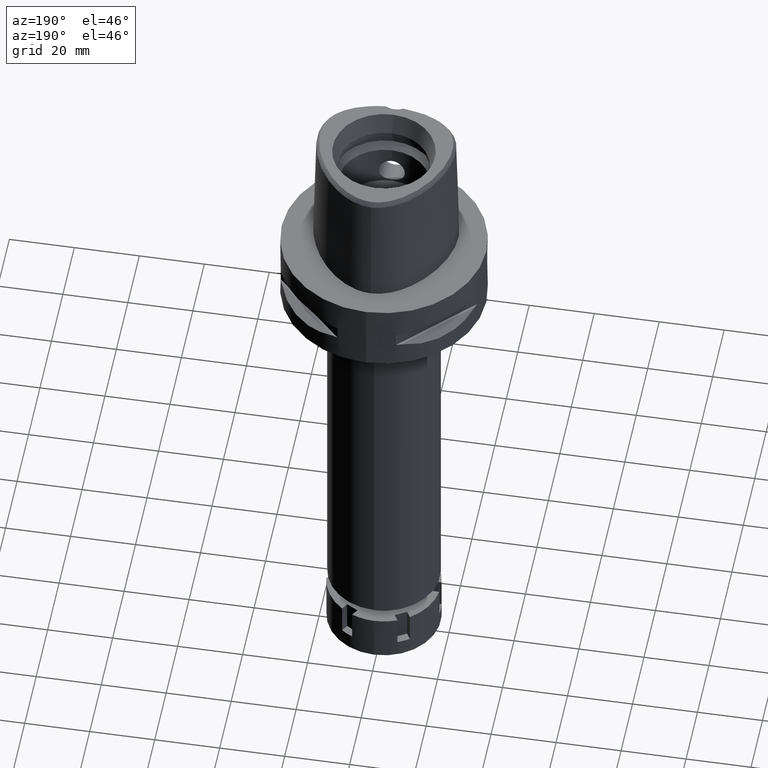
[diagram: clean part render]
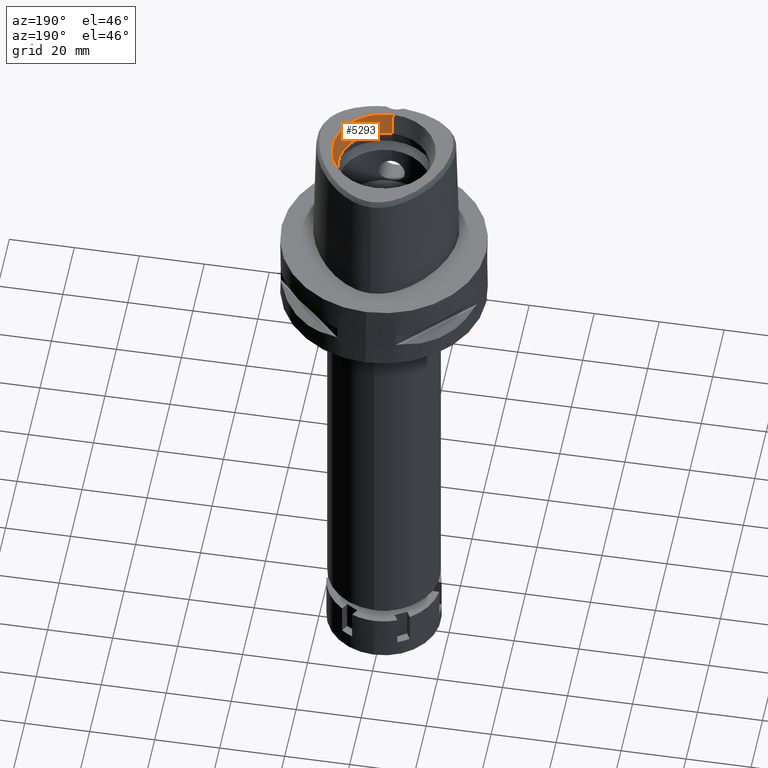
[diagram: same view with one face highlighted and labeled with its STEP entity id]
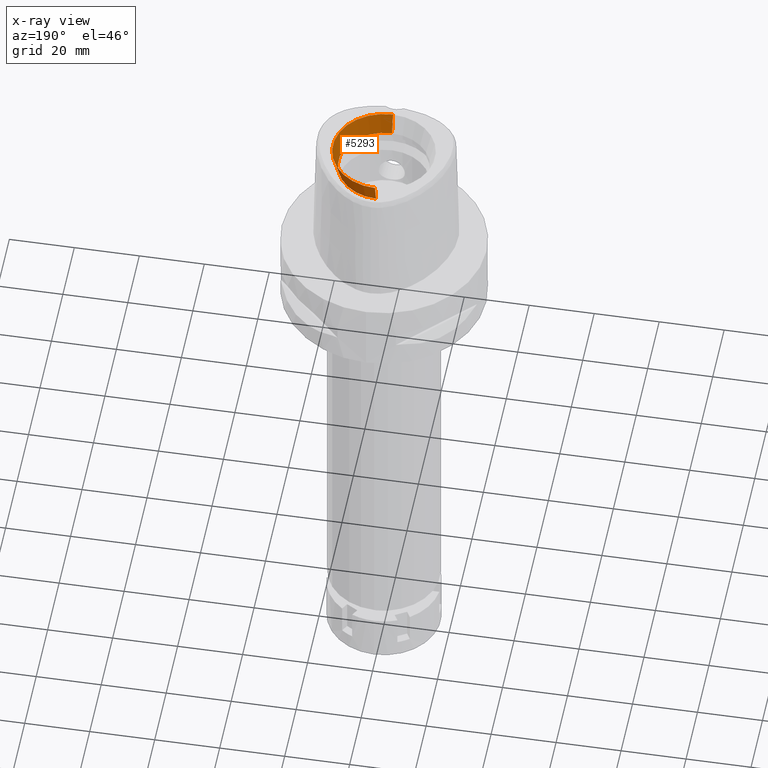
[diagram: x-ray of the same camera — body ghosted, the highlighted face saturated]
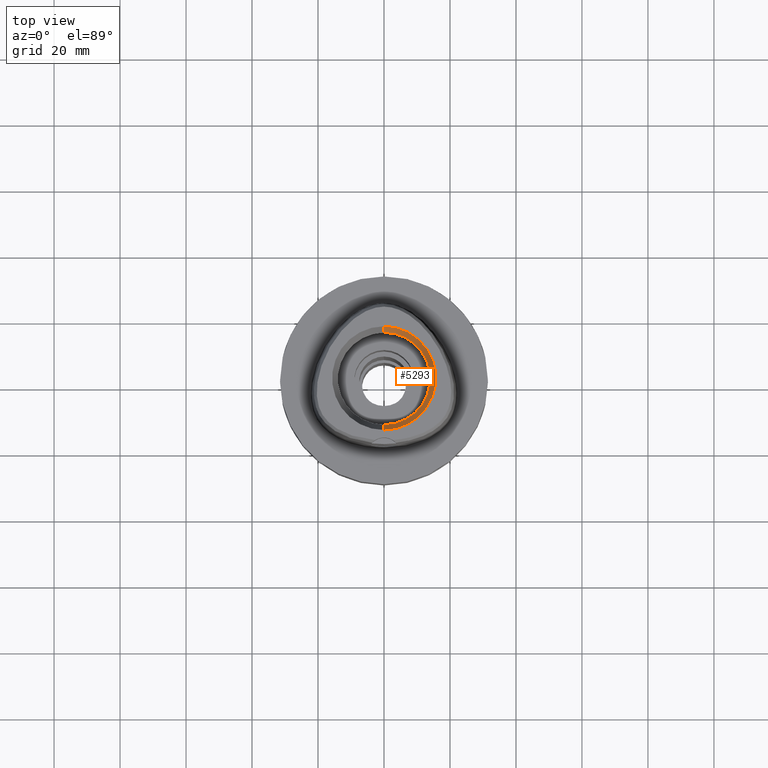
[diagram: same view with one face highlighted and labeled with its STEP entity id]
A machine part, auxiliary view. The second image highlights one B-rep face of the part: STEP entity #5293.
The next image is the same camera in x-ray: the body ghosted, the highlighted face saturated — about 0% of this face is hidden behind the body in this view.
A second angle (top view) of the same face is appended — the face is thin or edge-on in the first view.
In plain terms, the highlighted conical surface has half-angle 15 deg.
Its self-contained STEP definition (entity closure, byte-faithful):
#11 = DIRECTION ( 'NONE',  ( 0.0000000000000000000, -0.2588190451025869088, 0.9659258262890505486 ) ) ;
#284 = AXIS2_PLACEMENT_3D ( 'NONE', #2815, #731, #3268 ) ;
#309 = ORIENTED_EDGE ( 'NONE', *, *, #313, .F. ) ;
#313 = EDGE_CURVE ( 'NONE', #1149, #4085, #1038, .T. ) ;
#333 = CARTESIAN_POINT ( 'NONE',  ( 0.0000000000000000000, -14.00000000000000000, 31.60000000000000142 ) ) ;
#380 = LINE ( 'NONE', #4306, #2227 ) ;
#575 = AXIS2_PLACEMENT_3D ( 'NONE', #2373, #5460, #1614 ) ;
#650 = FACE_OUTER_BOUND ( 'NONE', #5069, .T. ) ;
#731 = DIRECTION ( 'NONE',  ( 0.0000000000000000000, 0.0000000000000000000, 1.000000000000000000 ) ) ;
#780 = AXIS2_PLACEMENT_3D ( 'NONE', #5422, #797, #3762 ) ;
#797 = DIRECTION ( 'NONE',  ( 0.0000000000000000000, 0.0000000000000000000, 1.000000000000000000 ) ) ;
#927 = CARTESIAN_POINT ( 'NONE',  ( 0.0000000000000000000, 14.00000000000000000, 31.60000000000000142 ) ) ;
#1038 = LINE ( 'NONE', #927, #5175 ) ;
#1149 = VERTEX_POINT ( 'NONE', #1642 ) ;
#1418 = VERTEX_POINT ( 'NONE', #333 ) ;
#1457 = EDGE_CURVE ( 'NONE', #4561, #4085, #2673, .T. ) ;
#1569 = ORIENTED_EDGE ( 'NONE', *, *, #1457, .T. ) ;
#1614 = DIRECTION ( 'NONE',  ( 0.0000000000000000000, 1.000000000000000000, 0.0000000000000000000 ) ) ;
#1642 = CARTESIAN_POINT ( 'NONE',  ( 0.0000000000000000000, 14.00000000000000000, 31.60000000000000142 ) ) ;
#2183 = CIRCLE ( 'NONE', #284, 14.00000000000000000 ) ;
#2204 = CONICAL_SURFACE ( 'NONE', #575, 14.85743741577999977, 0.2617993877991000029 ) ;
#2227 = VECTOR ( 'NONE', #11, 1000.000000000000000 ) ;
#2373 = CARTESIAN_POINT ( 'NONE',  ( 0.0000000000000000000, 0.0000000000000000000, 34.79999999999999716 ) ) ;
#2655 = DIRECTION ( 'NONE',  ( 0.0000000000000000000, 0.2588190451025869088, 0.9659258262890505486 ) ) ;
#2673 = CIRCLE ( 'NONE', #780, 15.71487483155999776 ) ;
#2761 = CARTESIAN_POINT ( 'NONE',  ( 0.0000000000000000000, -15.71487483155999776, 38.00000000000000000 ) ) ;
#2815 = CARTESIAN_POINT ( 'NONE',  ( 0.0000000000000000000, 0.0000000000000000000, 31.60000000000000142 ) ) ;
#3181 = EDGE_CURVE ( 'NONE', #1418, #4561, #380, .T. ) ;
#3268 = DIRECTION ( 'NONE',  ( 0.0000000000000000000, -1.000000000000000000, 0.0000000000000000000 ) ) ;
#3511 = ORIENTED_EDGE ( 'NONE', *, *, #3181, .T. ) ;
#3614 = EDGE_CURVE ( 'NONE', #1418, #1149, #2183, .T. ) ;
#3762 = DIRECTION ( 'NONE',  ( 0.0000000000000000000, -1.000000000000000000, 0.0000000000000000000 ) ) ;
#4085 = VERTEX_POINT ( 'NONE', #5076 ) ;
#4306 = CARTESIAN_POINT ( 'NONE',  ( 0.0000000000000000000, -14.00000000000000000, 31.60000000000000142 ) ) ;
#4561 = VERTEX_POINT ( 'NONE', #2761 ) ;
#4979 = ORIENTED_EDGE ( 'NONE', *, *, #3614, .F. ) ;
#5069 = EDGE_LOOP ( 'NONE', ( #309, #4979, #3511, #1569 ) ) ;
#5076 = CARTESIAN_POINT ( 'NONE',  ( 0.0000000000000000000, 15.71487483155999776, 38.00000000000000000 ) ) ;
#5175 = VECTOR ( 'NONE', #2655, 1000.000000000000000 ) ;
#5293 = ADVANCED_FACE ( 'NONE', ( #650 ), #2204, .F. ) ;
#5422 = CARTESIAN_POINT ( 'NONE',  ( 0.0000000000000000000, 0.0000000000000000000, 38.00000000000000000 ) ) ;
#5460 = DIRECTION ( 'NONE',  ( 0.0000000000000000000, 0.0000000000000000000, 1.000000000000000000 ) ) ;